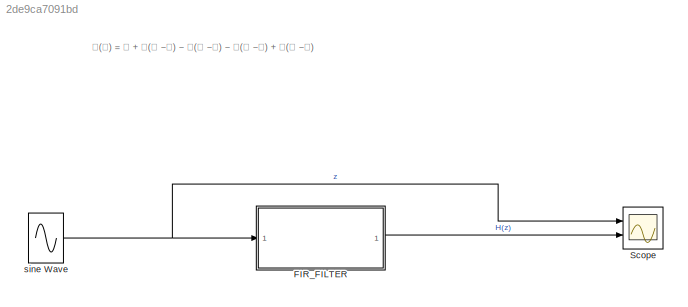
MODEL slx_2de9ca7091bd
KIND model
CONFIG AbsTol = auto
CONFIG EnableMultiTasking = off
CONFIG FixedStep = auto
CONFIG MaxStep = auto
CONFIG MinStep = auto
CONFIG RelTol = 1e-3
CONFIG SampleTimeConstraint = Unconstrained
CONFIG SolverName = VariableStepAuto
CONFIG StartTime = 0.0
CONFIG StopTime = 10
WORKSPACE source: mxarray member
WORKSPACE Sig: Simulink.Signal (value not decoded)
BLOCK [ModelReference] FIR_FILTER
  ModelNameDialog = FIR_FILTER
  ModelReferenceVersion = 1.8
  Ports = [1, 1]
BLOCK [Scope] Scope
  Floating = off
  NumInputPorts = 2
  Ports = [2]
  ScopeSpecificationString = Simulink.scopes.TimeScopeBlockCfg('CurrentConfiguration', extmgr.ConfigurationSet(extmgr.Configuration('Core','General UI',true),extmgr.Configuration('Core','Source UI',true),extmgr.Configuration('Sources','WiredSimulink',true),extmgr.Configuration('Visuals','Time Domain',true,'SerializedDisplays',{struct('MinYLimReal','-1.24563','MaxYLimReal','1.24904','YLabelReal','','MinYLimMag','0.00000','MaxY...<+1984ch>
BLOCK [Sin] sine Wave
  Ports = [0, 1]
  SampleTime = 0
ANNOTATION (root): 𝐇(𝐳) = 𝟏 + 𝟐(𝐳 −𝟏) − 𝟑(𝐳 −𝟐) − 𝟒(𝐳 −𝟑) + 𝟓(𝐳 −𝟒)
LINE FIR_FILTER:1 -> Scope:2
NET sine Wave:1 -> FIR_FILTER:1, Scope:1
note: NET lines group one-source signal fan-out (src -> all destinations, sorted); 1:1 wires keep LINE
